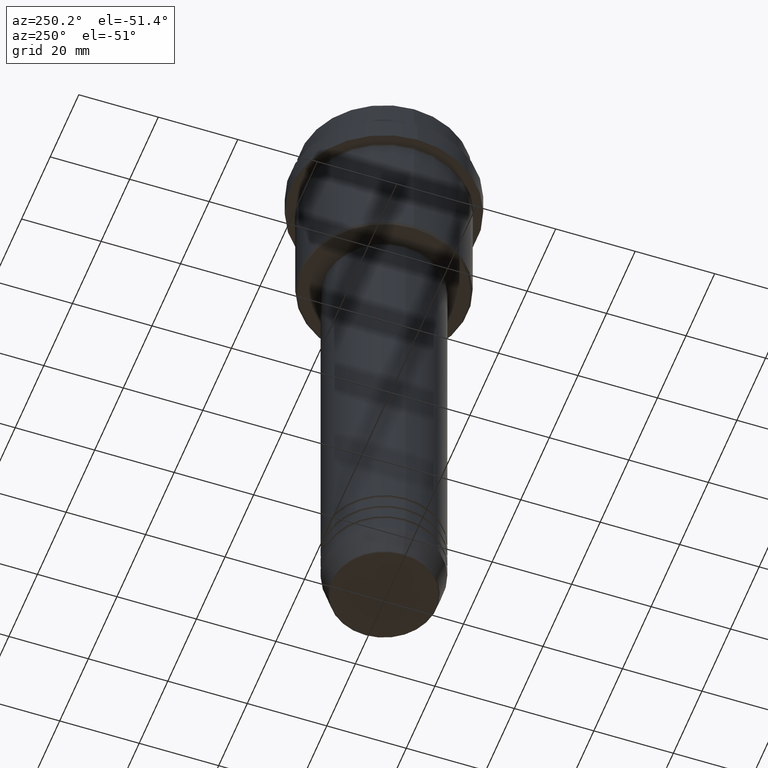
[diagram: clean part render]
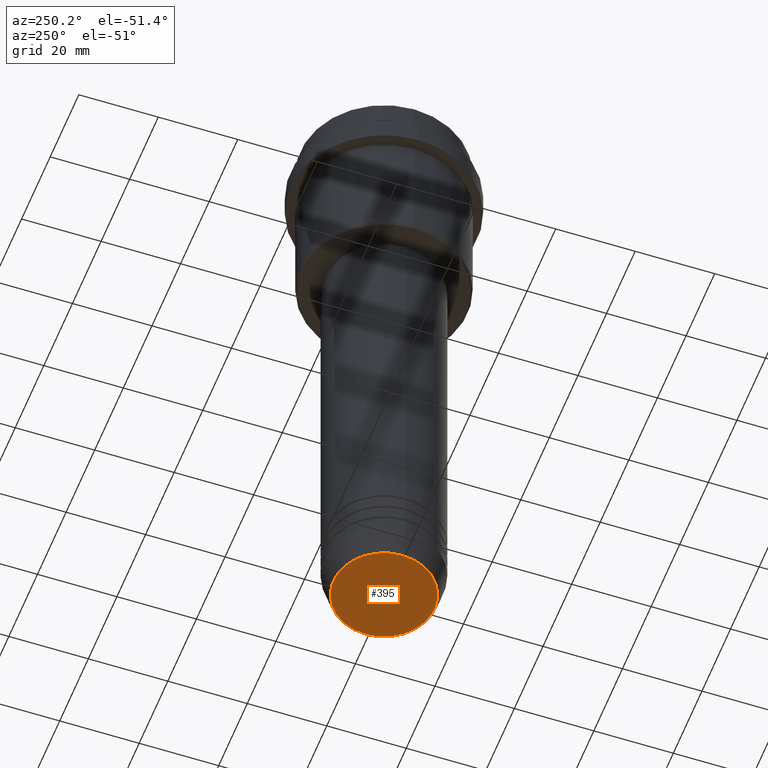
[diagram: same view with one face highlighted and labeled with its STEP entity id]
A machine part, auxiliary view. The second image highlights one B-rep face of the part: STEP entity #395.
In plain terms, the highlighted planar face has unit normal (0, -0, 1).
Its self-contained STEP definition (entity closure, byte-faithful):
#354 = EDGE_LOOP ( 'NONE', ( #1025, #1002 ) ) ;
#380 = AXIS2_PLACEMENT_3D ( 'NONE', #823, #808, #713 ) ;
#395 = ADVANCED_FACE ( 'NONE', ( #581 ), #1143, .F. ) ;
#472 = CIRCLE ( 'NONE', #679, 12.74069215899266538 ) ;
#581 = FACE_OUTER_BOUND ( 'NONE', #354, .T. ) ;
#655 = CIRCLE ( 'NONE', #380, 12.74069215899266538 ) ;
#679 = AXIS2_PLACEMENT_3D ( 'NONE', #1306, #1209, #1113 ) ;
#713 = DIRECTION ( 'NONE',  ( 1.000000000000000000, 0.000000000000000000, 0.000000000000000000 ) ) ;
#752 = CARTESIAN_POINT ( 'NONE',  ( -12.74069215899266538, 1.589857736427681824E-15, -159.9999999999999716 ) ) ;
#774 = VERTEX_POINT ( 'NONE', #1347 ) ;
#803 = CARTESIAN_POINT ( 'NONE',  ( 0.000000000000000000, 0.000000000000000000, -159.9999999999999716 ) ) ;
#808 = DIRECTION ( 'NONE',  ( 0.000000000000000000, 0.000000000000000000, -1.000000000000000000 ) ) ;
#823 = CARTESIAN_POINT ( 'NONE',  ( 0.000000000000000000, 0.000000000000000000, -159.9999999999999716 ) ) ;
#846 = EDGE_CURVE ( 'NONE', #774, #1145, #655, .T. ) ;
#861 = AXIS2_PLACEMENT_3D ( 'NONE', #803, #1246, #1380 ) ;
#1002 = ORIENTED_EDGE ( 'NONE', *, *, #1054, .T. ) ;
#1025 = ORIENTED_EDGE ( 'NONE', *, *, #846, .T. ) ;
#1054 = EDGE_CURVE ( 'NONE', #1145, #774, #472, .T. ) ;
#1113 = DIRECTION ( 'NONE',  ( 1.000000000000000000, 0.000000000000000000, 0.000000000000000000 ) ) ;
#1143 = PLANE ( 'NONE',  #861 ) ;
#1145 = VERTEX_POINT ( 'NONE', #752 ) ;
#1209 = DIRECTION ( 'NONE',  ( 0.000000000000000000, 0.000000000000000000, -1.000000000000000000 ) ) ;
#1246 = DIRECTION ( 'NONE',  ( 0.000000000000000000, -0.000000000000000000, 1.000000000000000000 ) ) ;
#1306 = CARTESIAN_POINT ( 'NONE',  ( 0.000000000000000000, 0.000000000000000000, -159.9999999999999716 ) ) ;
#1347 = CARTESIAN_POINT ( 'NONE',  ( 12.74069215899266538, 0.000000000000000000, -159.9999999999999716 ) ) ;
#1380 = DIRECTION ( 'NONE',  ( 1.000000000000000000, 0.000000000000000000, 0.000000000000000000 ) ) ;